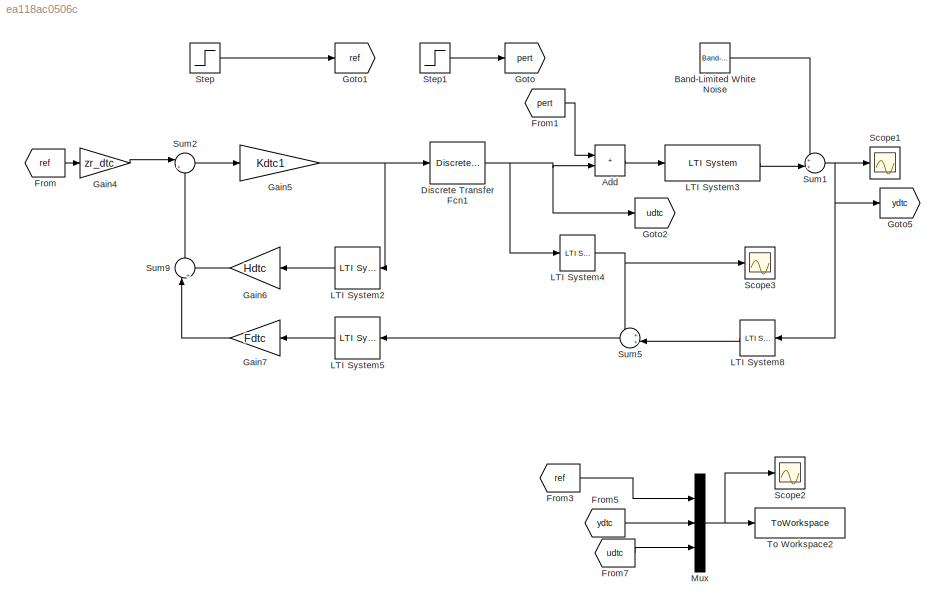
MODEL slx_ea118ac0506c
KIND model
CONFIG AbsTol = auto
CONFIG EnableMultiTasking = off
CONFIG FixedStep = auto
CONFIG MaxStep = 0.01
CONFIG MinStep = auto
CONFIG RelTol = 1e-3
CONFIG SampleTimeConstraint = Unconstrained
CONFIG Solver = VariableStepAuto
CONFIG SolverName = VariableStepAuto
CONFIG StartTime = 0.0
CONFIG StopTime = tsim
BLOCK [Sum] Add
  IconShape = rectangular
  Ports = [2, 1]
BLOCK [Reference] Band-Limited White Noise  REF=simulink/Sources/Band-Limited
White Noise
  Ports = [0, 1]
  SourceBlock = simulink/Sources/Band-Limited\nWhite Noise
  SourceProductBaseCode = SL
  SourceType = Band-Limited White Noise.
BLOCK [DiscreteTransferFcn] Discrete Transfer Fcn1
  Denominator = [1 -1]
  InputPortMap = u0
  Numerator = [1 0]
  Ports = [1, 1]
  SampleTime = Ts
BLOCK [From] From
  GotoTag = ref
BLOCK [From] From1
  GotoTag = pert
BLOCK [From] From3
  GotoTag = ref
BLOCK [From] From5
  GotoTag = ydtc
BLOCK [From] From7
  GotoTag = udtc
BLOCK [Gain] Gain4
  Gain = zr_dtc
  Multiplication = Matrix(K*u)
BLOCK [Gain] Gain5
  Gain = Kdtc1
  Multiplication = Matrix(K*u)
BLOCK [Gain] Gain6
  Gain = Hdtc
  Multiplication = Matrix(K*u)
  NameLocation = top
BLOCK [Gain] Gain7
  Gain = Fdtc
  Multiplication = Matrix(K*u)
  NameLocation = top
BLOCK [Goto] Goto
  GotoTag = pert
BLOCK [Goto] Goto1
  GotoTag = ref
BLOCK [Goto] Goto2
  GotoTag = udtc
BLOCK [Goto] Goto5
  GotoTag = ydtc
BLOCK [Reference] LTI System2  REF=cstblocks/LTI System
  NameLocation = top
  Ports = [1, 1]
  SourceBlock = cstblocks/LTI System
  SourceProductBaseCode = CT
  SourceType = LTI Block
BLOCK [Reference] LTI System3  REF=cstblocks/LTI System
  Ports = [1, 1]
  SourceBlock = cstblocks/LTI System
  SourceProductBaseCode = CT
  SourceType = LTI Block
BLOCK [Reference] LTI System4  REF=cstblocks/LTI System
  Ports = [1, 1]
  SourceBlock = cstblocks/LTI System
  SourceProductBaseCode = CT
  SourceType = LTI Block
BLOCK [Reference] LTI System5  REF=cstblocks/LTI System
  NameLocation = top
  Ports = [1, 1]
  SourceBlock = cstblocks/LTI System
  SourceProductBaseCode = CT
  SourceType = LTI Block
BLOCK [Reference] LTI System8  REF=cstblocks/LTI System
  Ports = [1, 1]
  SourceBlock = cstblocks/LTI System
  SourceProductBaseCode = CT
  SourceType = LTI Block
BLOCK [Mux] Mux
  DisplayOption = bar
  Inputs = 3
  Ports = [3, 1]
BLOCK [Scope] Scope1
  Floating = off
  NumInputPorts = 1
  Ports = [1]
  ScopeSpecificationString = Simulink.scopes.TimeScopeBlockCfg('CurrentConfiguration', extmgr.ConfigurationSet(extmgr.Configuration('Core','General UI',true),extmgr.Configuration('Core','Source UI',true),extmgr.Configuration('Sources','WiredSimulink',true,'DataLoggingVariableName','ScopeData1'),extmgr.Configuration('Visuals','Time Domain',true,'SerializedDisplays',{struct('MinYLimReal','-0.11697','MaxYLimReal','1.05274','YLab...<+1389ch>
BLOCK [Scope] Scope2
  Floating = off
  NumInputPorts = 1
  Ports = [1]
  ScopeSpecificationString = Simulink.scopes.TimeScopeBlockCfg('CurrentConfiguration', extmgr.ConfigurationSet(extmgr.Configuration('Core','General UI',true),extmgr.Configuration('Core','Source UI',true),extmgr.Configuration('Sources','WiredSimulink',true,'DataLoggingVariableName','ScopeData1'),extmgr.Configuration('Visuals','Time Domain',true,'SerializedDisplays',{struct('MinYLimReal','-1.1016','MaxYLimReal','1.532','YLabelR...<+1482ch>
BLOCK [Scope] Scope3
  Floating = off
  NumInputPorts = 1
  Ports = [1]
  ScopeSpecificationString = Simulink.scopes.TimeScopeBlockCfg('CurrentConfiguration', extmgr.ConfigurationSet(extmgr.Configuration('Core','General UI',true),extmgr.Configuration('Core','Source UI',true),extmgr.Configuration('Sources','WiredSimulink',true,'DataLoggingVariableName','ScopeData1'),extmgr.Configuration('Visuals','Time Domain',true,'SerializedDisplays',{struct('MinYLimReal','-1.13659','MaxYLimReal','0.74962','YLab...<+1450ch>
BLOCK [Step] Step
  After = ampref
  SampleTime = 0
  Time = tref
BLOCK [Step] Step1
  After = amppert
  SampleTime = 0
  Time = tpert
BLOCK [Sum] Sum1
  Inputs = ++|
  Ports = [2, 1]
BLOCK [Sum] Sum2
  Inputs = |+-
  Ports = [2, 1]
BLOCK [Sum] Sum5
  Inputs = ++|
  NameLocation = top
  Ports = [2, 1]
BLOCK [Sum] Sum9
  Inputs = |++
  NameLocation = right
  Ports = [2, 1]
BLOCK [ToWorkspace] To Workspace2
  FixptAsFi = on
  MaxDataPoints = inf
  Ports = [1]
  SampleTime = -1
  VariableName = simout
LINE Add:1 -> LTI System3:1
LINE Band-Limited White Noise:1 -> Sum1:1
NET Discrete Transfer Fcn1:1 -> Add:2, Goto2:1, LTI System4:1
LINE From1:1 -> Add:1
LINE From3:1 -> Mux:1
LINE From5:1 -> Mux:2
LINE From7:1 -> Mux:3
LINE From:1 -> Gain4:1
LINE Gain4:1 -> Sum2:1
NET Gain5:1 -> Discrete Transfer Fcn1:1, LTI System2:1
LINE Gain6:1 -> Sum9:2
LINE Gain7:1 -> Sum9:1
LINE LTI System2:1 -> Gain6:1
LINE LTI System3:1 -> Sum1:2
NET LTI System4:1 -> Scope3:1, Sum5:1
LINE LTI System5:1 -> Gain7:1
LINE LTI System8:1 -> Sum5:2
NET Mux:1 -> Scope2:1, To Workspace2:1
LINE Step1:1 -> Goto:1
LINE Step:1 -> Goto1:1
NET Sum1:1 -> Goto5:1, LTI System8:1, Scope1:1
LINE Sum2:1 -> Gain5:1
LINE Sum5:1 -> LTI System5:1
LINE Sum9:1 -> Sum2:2
note: NET lines group one-source signal fan-out (src -> all destinations, sorted); 1:1 wires keep LINE
